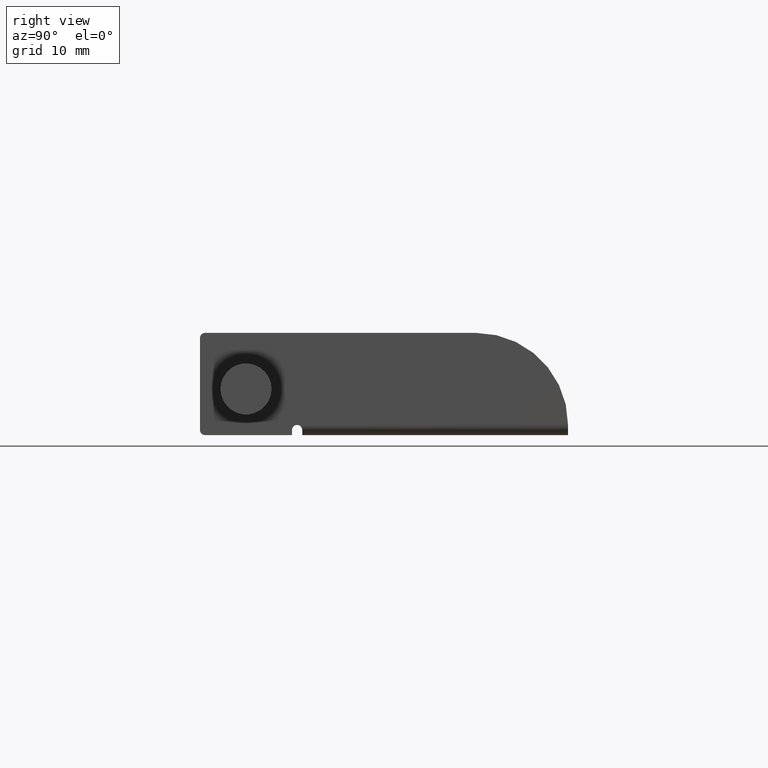
[diagram: clean part render]
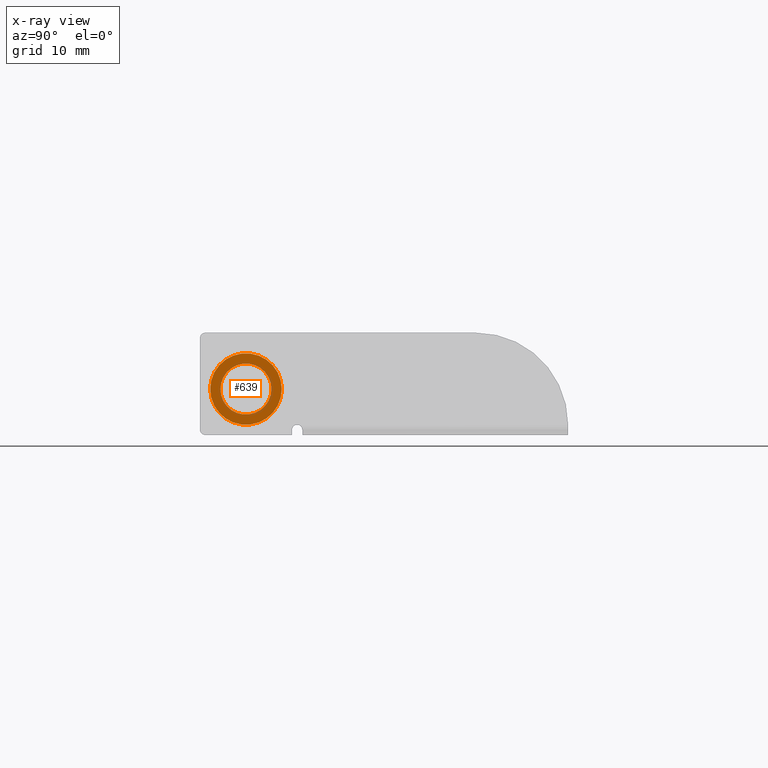
[diagram: x-ray — body ghosted, one internal face saturated and labeled with its STEP entity id]
A machine part, right view, then the same camera in x-ray: the body is ghosted and one INTERNAL B-rep face — a face not visible from any outside direction — is saturated and labeled: STEP entity #639.
In plain terms, the highlighted planar face has unit normal (-1, 0, 0).
Its self-contained STEP definition (entity closure, byte-faithful):
#154=FACE_BOUND('',#212,.T.);
#170=FACE_OUTER_BOUND('',#211,.T.);
#211=EDGE_LOOP('',(#447));
#212=EDGE_LOOP('',(#448));
#268=CIRCLE('',#685,3.5);
#269=CIRCLE('',#686,2.5);
#302=VERTEX_POINT('',#974);
#303=VERTEX_POINT('',#976);
#362=EDGE_CURVE('',#302,#302,#268,.T.);
#363=EDGE_CURVE('',#303,#303,#269,.T.);
#447=ORIENTED_EDGE('',*,*,#362,.F.);
#448=ORIENTED_EDGE('',*,*,#363,.F.);
#617=PLANE('',#684);
#639=ADVANCED_FACE('',(#170,#154),#617,.F.);
#684=AXIS2_PLACEMENT_3D('',#973,#766,#767);
#685=AXIS2_PLACEMENT_3D('',#975,#768,#769);
#686=AXIS2_PLACEMENT_3D('',#977,#770,#771);
#766=DIRECTION('center_axis',(0.,1.,0.));
#767=DIRECTION('ref_axis',(0.,0.,1.));
#768=DIRECTION('center_axis',(0.,1.,0.));
#769=DIRECTION('ref_axis',(0.,0.,1.));
#770=DIRECTION('center_axis',(0.,-1.,0.));
#771=DIRECTION('ref_axis',(-1.,0.,0.));
#973=CARTESIAN_POINT('Origin',(-1.67888272668602E-16,17.5,6.60847038467355E-17));
#974=CARTESIAN_POINT('',(3.5,17.5,4.28626379701574E-16));
#975=CARTESIAN_POINT('Origin',(0.,17.5,0.));
#976=CARTESIAN_POINT('',(2.5,17.5,3.06161699786838E-16));
#977=CARTESIAN_POINT('Origin',(0.,17.5,0.));